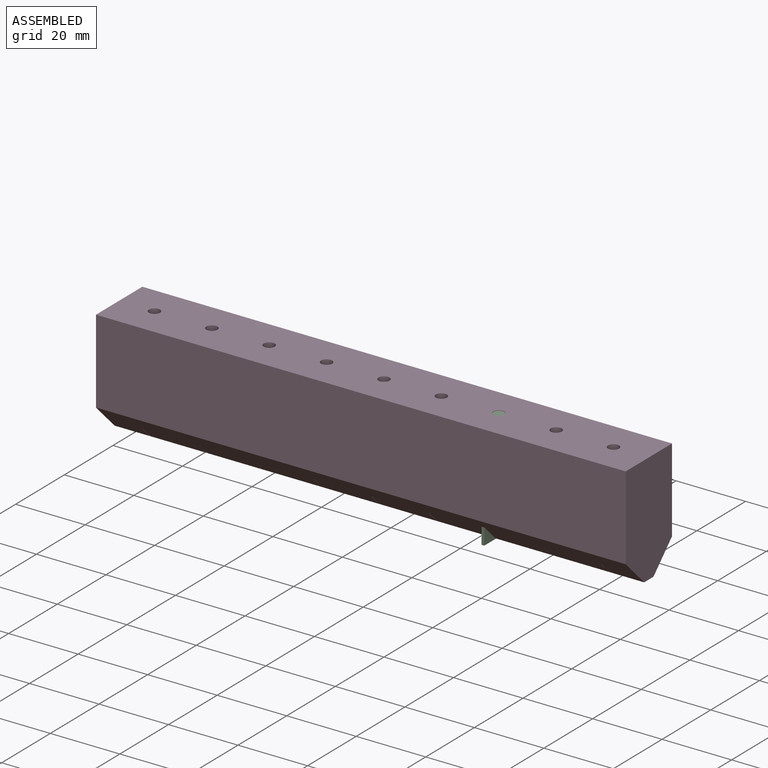
[diagram: assembled view]
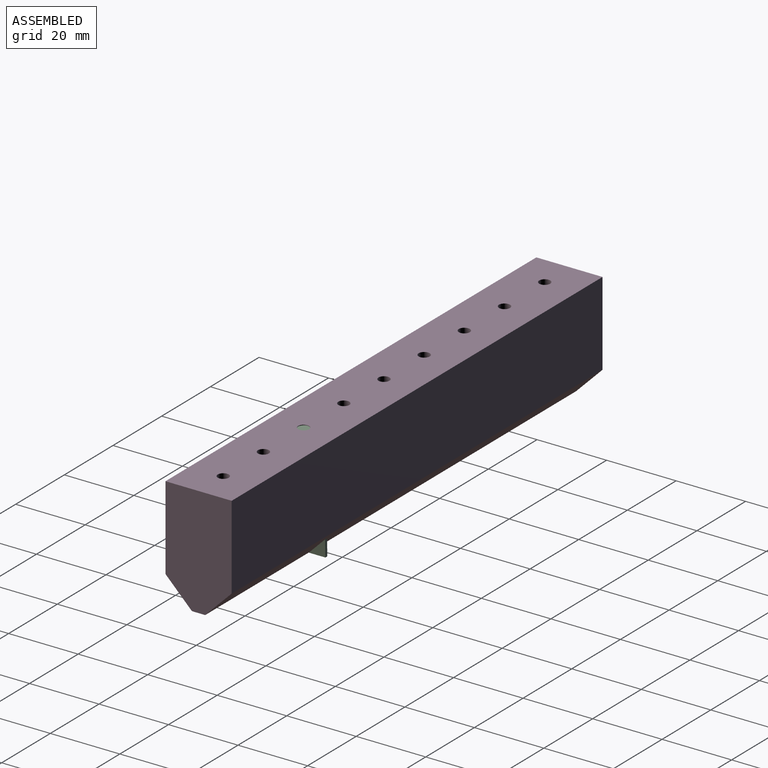
[diagram: assembled view, second angle]
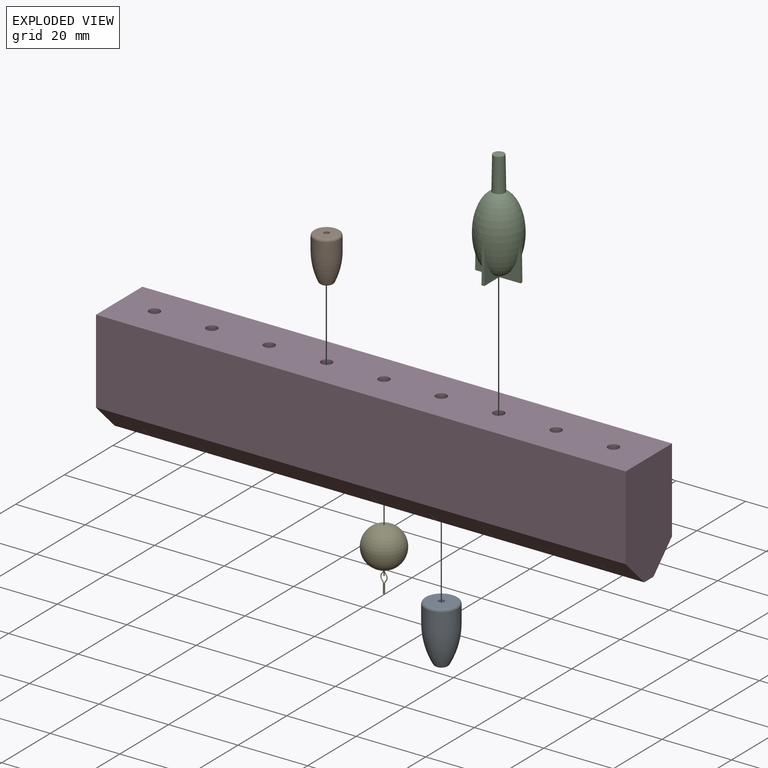
[diagram: exploded view]
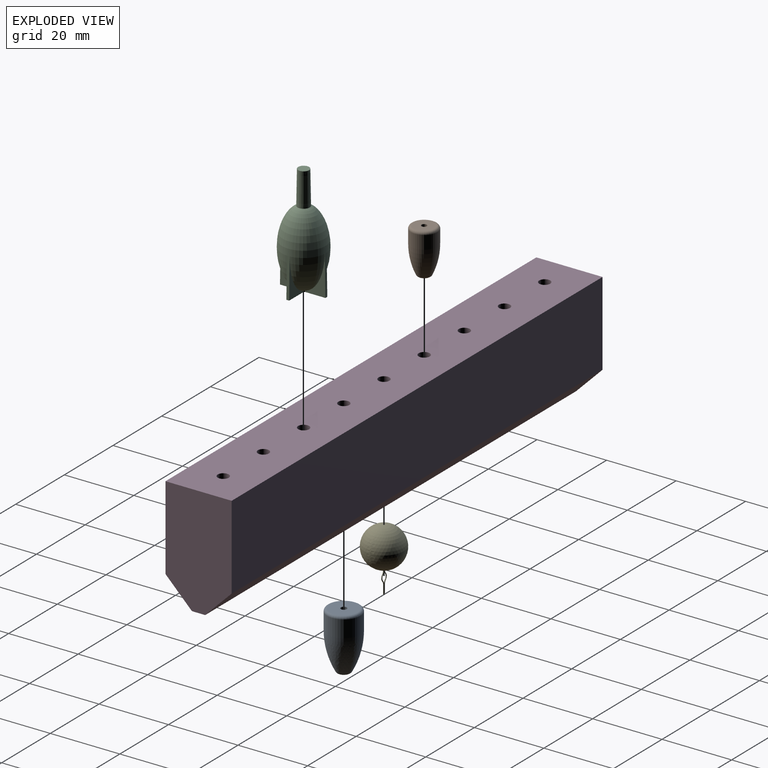
[diagram: exploded view, second angle]
ASSEMBLY  parts=5 mates=4
PART A: 7 faces, bbox 10.3x10.3x16.6 mm
  f0: cylinder r=0.85mm len=16.64mm, axis (0,0,-1), area 88.9mm2, adj f1,f4
  f1: plane 2.67x2.67mm, normal (0,0,-1), area 3.3mm2, adj f0,f5
  f2: revolved ~10.66x9.53mm, area 268.1mm2, adj f3,f5
  f3: cylinder r=4.76mm len=9.53mm, axis (0,0,-1), area 144.4mm2, adj f2,f6
  f4: plane 8x8mm, normal (0,0,1), area 48mm2, adj f0,f6
  f5: torus R=1.33mm, axis (0,0,-1), area 8.7mm2, adj f1,f2
  f6: torus R=4mm, axis (0,0,-1), area 33.7mm2, adj f3,f4
PART B: 7 faces, bbox 8.2x8.2x13.1 mm
  f0: cylinder r=0.76mm len=13.06mm, axis (0,0,-1), area 62.5mm2, adj f1,f4
  f1: plane 2.6x2.6mm, normal (0,0,-1), area 3.5mm2, adj f0,f5
  f2: revolved ~8.05x7.57mm, area 166.2mm2, adj f3,f5
  f3: cylinder r=3.78mm len=7.57mm, axis (0,0,-1), area 90.6mm2, adj f2,f6
  f4: plane 6.05x6.05mm, normal (0,0,1), area 26.9mm2, adj f0,f6
  f5: torus R=1.3mm, axis (0,0,-1), area 9.1mm2, adj f1,f2
  f6: torus R=3.02mm, axis (0,0,-1), area 26.4mm2, adj f3,f4
PART C: 24 faces, bbox 13.1x13.1x31.8 mm
  f0: plane 11.43x5.84mm, normal (0,-1,0), area 18.1mm2, adj f11,f13,f14,f23
  f1: plane 11.43x5.84mm, normal (0,1,0), area 18.1mm2, adj f2,f13,f14,f23
  f2: cylinder r=0.79mm len=0.4mm, axis (0,0,1), area 0.2mm2, adj f1,f3,f13,f14
  f3: plane 11.43x5.84mm, normal (-1,0,0), area 18.1mm2, adj f2,f13,f14,f21
  f4: plane 11.43x5.84mm, normal (1,0,0), area 18.1mm2, adj f5,f13,f14,f21
  f5: cylinder r=0.79mm len=0.4mm, axis (0,0,1), area 0.2mm2, adj f4,f6,f13,f14
  f6: plane 11.43x5.84mm, normal (0,1,0), area 18.1mm2, adj f5,f13,f14,f19
  f7: plane 11.43x5.84mm, normal (0,-1,0), area 18.1mm2, adj f8,f13,f14,f19
  f8: cylinder r=0.79mm len=0.4mm, axis (0,0,1), area 0.2mm2, adj f7,f9,f13,f14
  f9: plane 11.43x5.84mm, normal (1,0,0), area 18.1mm2, adj f8,f13,f14,f17
  f10: plane 11.43x5.84mm, normal (-1,0,0), area 18.1mm2, adj f11,f13,f14,f17
  f11: cylinder r=0.79mm len=0.4mm, axis (0,0,1), area 0.2mm2, adj f0,f10,f13,f14
  f12: plane 3.18x3.18mm, normal (0,0,1), area 7.9mm2, adj f15
  f13: plane 13.06x13.06mm, normal (0,0,-1), area 20.4mm2, adj f0,f1,f2,f3,f4,f5,f6,f7
  f14: revolved ~21.7x12.67mm, area 1095.3mm2, adj f0,f1,f2,f3,f4,f5,f6,f7
  f15: cone r=1.59mm half-angle=1deg, axis (0,0,-1), area 101.3mm2, adj f12,f14
  f16: plane 0.8x0.01mm, normal (0,0,-1), area 0mm2, adj f14,f17
  f17: plane 11.43x0.8mm, normal (0,-1,0.02), area 9.1mm2, adj f9,f10,f13,f16
  f18: plane 0.8x0.01mm, normal (0,0,-1), area 0mm2, adj f14,f19
  f19: plane 11.43x0.8mm, normal (1,0,0.02), area 9.1mm2, adj f6,f7,f13,f18
  f20: plane 0.8x0.01mm, normal (0,0,-1), area 0mm2, adj f14,f21
  f21: plane 11.43x0.8mm, normal (0,1,0.02), area 9.1mm2, adj f3,f4,f13,f20
  f22: plane 0.8x0.01mm, normal (0,0,-1), area 0mm2, adj f14,f23
  f23: plane 11.43x0.8mm, normal (-1,0,0.02), area 9.1mm2, adj f0,f1,f13,f22
PART D: 251 faces, bbox 152.4x19.1x31.8 mm
  f0: plane 10.1x3.81mm, normal (0,0,-1), area 36.5mm2, adj f25,f28,f47,f49,f53,f164,f177,f181
  f1: plane 16.38x3.81mm, normal (0,0,-1), area 58.5mm2, adj f23,f24,f51,f52,f56,f60,f62,f66
  f2: plane 16.38x3.81mm, normal (0,0,-1), area 58.5mm2, adj f21,f22,f64,f65,f69,f73,f75,f79
  f3: plane 16.38x3.81mm, normal (0,0,-1), area 58.5mm2, adj f19,f20,f77,f78,f82,f86,f88,f92
  f4: plane 16.38x3.81mm, normal (0,0,-1), area 58.5mm2, adj f18,f27,f34,f36,f40,f90,f91,f95
  f5: plane 16.38x3.81mm, normal (0,0,-1), area 58.5mm2, adj f17,f26,f38,f39,f43,f99,f101,f105
  f6: plane 16.38x3.81mm, normal (0,0,-1), area 58.5mm2, adj f15,f16,f103,f104,f108,f112,f114,f118
  f7: plane 16.38x3.81mm, normal (0,0,-1), area 58.5mm2, adj f13,f14,f116,f117,f121,f125,f127,f131
  f8: plane 16.38x3.81mm, normal (0,0,-1), area 58.5mm2, adj f10,f12,f129,f130,f134,f138,f140,f144
  f9: cylinder r=0.79mm len=0.72mm, axis (0,0,-1), area 0.4mm2, adj f11,f136,f142,f147
  f10: cylinder r=0.79mm len=0.72mm, axis (0,0,-1), area 0.4mm2, adj f8,f136,f138,f144
  f11: plane 10.1x3.81mm, normal (0,0,-1), area 36.5mm2, adj f9,f30,f142,f143,f147,f149,f243,f247
  f12: cylinder r=0.79mm len=0.72mm, axis (0,0,-1), area 0.4mm2, adj f8,f123,f129,f134
  f13: cylinder r=0.79mm len=0.72mm, axis (0,0,-1), area 0.4mm2, adj f7,f123,f125,f131
  f14: cylinder r=0.79mm len=0.72mm, axis (0,0,-1), area 0.4mm2, adj f7,f110,f116,f121
  f15: cylinder r=0.79mm len=0.72mm, axis (0,0,-1), area 0.4mm2, adj f6,f110,f112,f118
  f16: cylinder r=0.79mm len=0.72mm, axis (0,0,-1), area 0.4mm2, adj f6,f97,f103,f108
  f17: cylinder r=0.79mm len=0.72mm, axis (0,0,-1), area 0.4mm2, adj f5,f97,f99,f105
  f18: cylinder r=0.79mm len=0.72mm, axis (0,0,-1), area 0.4mm2, adj f4,f84,f90,f95
  f19: cylinder r=0.79mm len=0.72mm, axis (0,0,-1), area 0.4mm2, adj f3,f84,f86,f92
  f20: cylinder r=0.79mm len=0.72mm, axis (0,0,-1), area 0.4mm2, adj f3,f71,f77,f82
  f21: cylinder r=0.79mm len=0.72mm, axis (0,0,-1), area 0.4mm2, adj f2,f71,f73,f79
  f22: cylinder r=0.79mm len=0.72mm, axis (0,0,-1), area 0.4mm2, adj f2,f58,f64,f69
  f23: cylinder r=0.79mm len=0.72mm, axis (0,0,-1), area 0.4mm2, adj f1,f58,f60,f66
  f24: cylinder r=0.79mm len=0.72mm, axis (0,0,-1), area 0.4mm2, adj f1,f45,f51,f56
  f25: cylinder r=0.79mm len=0.72mm, axis (0,0,-1), area 0.4mm2, adj f0,f45,f47,f53
  f26: cylinder r=0.79mm len=0.72mm, axis (0,0,-1), area 0.4mm2, adj f5,f32,f38,f43
  f27: cylinder r=0.79mm len=0.72mm, axis (0,0,-1), area 0.4mm2, adj f4,f32,f34,f40
  f28: plane 31.75x19.05mm, normal (1,0,0), area 546.8mm2, adj f0,f29,f31,f167,f249,f250
  f29: plane 152.4x19.05mm, normal (0,0,1), area 2832mm2, adj f28,f30,f31,f33,f46,f59,f72,f85
  f30: plane 31.75x19.05mm, normal (-1,0,0), area 546.8mm2, adj f11,f29,f31,f167,f249,f250
  f31: plane 152.4x24.13mm, normal (0,1,0), area 3677.4mm2, adj f28,f29,f30,f250
  f32: revolved ~21.79x12.7mm, area 1391.5mm2, adj f26,f27,f33,f34,f35,f37,f38,f40
  f33: cylinder r=1.59mm len=9.56mm, axis (0,0,-1), area 95.4mm2, adj f29,f32
  f34: plane 4.76x4.3mm, normal (0,-1,0), area 8.2mm2, adj f4,f27,f32,f35,f36
  f35: plane 0.13x0mm, normal (0,0,-1), area 0mm2, adj f32,f34,f36
  f36: plane 4.76x0.25mm, normal (-1,0,0), area 1.2mm2, adj f4,f34,f35,f168,f169
  f37: plane 0.13x0mm, normal (0,0,-1), area 0mm2, adj f32,f38,f39
  f38: plane 4.76x4.3mm, normal (0,-1,0), area 8.2mm2, adj f5,f26,f32,f37,f39
  f39: plane 4.76x0.25mm, normal (1,0,0), area 1.2mm2, adj f5,f37,f38,f170,f171
  f40: plane 4.76x4.29mm, normal (-1,0,0), area 3.1mm2, adj f4,f27,f32,f42,f44,f250
  f41: plane 0.06x0mm, normal (0,0,-1), area 0mm2, adj f32,f43,f44
  f42: plane 0.06x0mm, normal (0,0,-1), area 0mm2, adj f32,f40,f44
  f43: plane 4.76x4.29mm, normal (1,0,0), area 3.1mm2, adj f5,f26,f32,f41,f44,f250
  f44: plane 1.59x0.13mm, normal (0,-1,0), area 0.2mm2, adj f40,f41,f42,f43,f250
  f45: revolved ~21.79x12.7mm, area 1391.5mm2, adj f24,f25,f46,f47,f48,f50,f51,f53
  f46: cylinder r=1.59mm len=9.56mm, axis (0,0,-1), area 95.4mm2, adj f29,f45
  f47: plane 4.76x4.3mm, normal (0,-1,0), area 8.2mm2, adj f0,f25,f45,f48,f49
  f48: plane 0.13x0mm, normal (0,0,-1), area 0mm2, adj f45,f47,f49
  f49: plane 4.76x0.25mm, normal (-1,0,0), area 1.2mm2, adj f0,f47,f48,f177,f178
  f50: plane 0.13x0mm, normal (0,0,-1), area 0mm2, adj f45,f51,f52
  f51: plane 4.76x4.3mm, normal (0,-1,0), area 8.2mm2, adj f1,f24,f45,f50,f52
  f52: plane 4.76x0.25mm, normal (1,0,0), area 1.2mm2, adj f1,f50,f51,f179,f180
  f53: plane 4.76x4.29mm, normal (-1,0,0), area 3.1mm2, adj f0,f25,f45,f55,f57,f250
  f54: plane 0.06x0mm, normal (0,0,-1), area 0mm2, adj f45,f56,f57
  f55: plane 0.06x0mm, normal (0,0,-1), area 0mm2, adj f45,f53,f57
  f56: plane 4.76x4.29mm, normal (1,0,0), area 3.1mm2, adj f1,f24,f45,f54,f57,f250
  f57: plane 1.59x0.13mm, normal (0,-1,0), area 0.2mm2, adj f53,f54,f55,f56,f250
  f58: revolved ~21.79x12.7mm, area 1391.5mm2, adj f22,f23,f59,f60,f61,f63,f64,f66
  f59: cylinder r=1.59mm len=9.56mm, axis (0,0,-1), area 95.4mm2, adj f29,f58
  f60: plane 4.76x4.3mm, normal (0,-1,0), area 8.2mm2, adj f1,f23,f58,f61,f62
  f61: plane 0.13x0mm, normal (0,0,-1), area 0mm2, adj f58,f60,f62
  f62: plane 4.76x0.25mm, normal (-1,0,0), area 1.2mm2, adj f1,f60,f61,f186,f187
  f63: plane 0.13x0mm, normal (0,0,-1), area 0mm2, adj f58,f64,f65
  f64: plane 4.76x4.3mm, normal (0,-1,0), area 8.2mm2, adj f2,f22,f58,f63,f65
  f65: plane 4.76x0.25mm, normal (1,0,0), area 1.2mm2, adj f2,f63,f64,f188,f189
  f66: plane 4.76x4.29mm, normal (-1,0,0), area 3.1mm2, adj f1,f23,f58,f68,f70,f250
  f67: plane 0.06x0mm, normal (0,0,-1), area 0mm2, adj f58,f69,f70
  f68: plane 0.06x0mm, normal (0,0,-1), area 0mm2, adj f58,f66,f70
  f69: plane 4.76x4.29mm, normal (1,0,0), area 3.1mm2, adj f2,f22,f58,f67,f70,f250
  f70: plane 1.59x0.13mm, normal (0,-1,0), area 0.2mm2, adj f66,f67,f68,f69,f250
  f71: revolved ~21.79x12.7mm, area 1391.5mm2, adj f20,f21,f72,f73,f74,f76,f77,f79
  f72: cylinder r=1.59mm len=9.56mm, axis (0,0,-1), area 95.4mm2, adj f29,f71
  f73: plane 4.76x4.3mm, normal (0,-1,0), area 8.2mm2, adj f2,f21,f71,f74,f75
  f74: plane 0.13x0mm, normal (0,0,-1), area 0mm2, adj f71,f73,f75
  f75: plane 4.76x0.25mm, normal (-1,0,0), area 1.2mm2, adj f2,f73,f74,f195,f196
  f76: plane 0.13x0mm, normal (0,0,-1), area 0mm2, adj f71,f77,f78
  f77: plane 4.76x4.3mm, normal (0,-1,0), area 8.2mm2, adj f3,f20,f71,f76,f78
  f78: plane 4.76x0.25mm, normal (1,0,0), area 1.2mm2, adj f3,f76,f77,f197,f198
  f79: plane 4.76x4.29mm, normal (-1,0,0), area 3.1mm2, adj f2,f21,f71,f81,f83,f250
  f80: plane 0.06x0mm, normal (0,0,-1), area 0mm2, adj f71,f82,f83
  f81: plane 0.06x0mm, normal (0,0,-1), area 0mm2, adj f71,f79,f83
  f82: plane 4.76x4.29mm, normal (1,0,0), area 3.1mm2, adj f3,f20,f71,f80,f83,f250
  f83: plane 1.59x0.13mm, normal (0,-1,0), area 0.2mm2, adj f79,f80,f81,f82,f250
  f84: revolved ~21.79x12.7mm, area 1391.5mm2, adj f18,f19,f85,f86,f87,f89,f90,f92
  f85: cylinder r=1.59mm len=9.56mm, axis (0,0,-1), area 95.4mm2, adj f29,f84
  f86: plane 4.76x4.3mm, normal (0,-1,0), area 8.2mm2, adj f3,f19,f84,f87,f88
  f87: plane 0.13x0mm, normal (0,0,-1), area 0mm2, adj f84,f86,f88
  f88: plane 4.76x0.25mm, normal (-1,0,0), area 1.2mm2, adj f3,f86,f87,f204,f205
  f89: plane 0.13x0mm, normal (0,0,-1), area 0mm2, adj f84,f90,f91
  f90: plane 4.76x4.3mm, normal (0,-1,0), area 8.2mm2, adj f4,f18,f84,f89,f91
  f91: plane 4.76x0.25mm, normal (1,0,0), area 1.2mm2, adj f4,f89,f90,f206,f207
  f92: plane 4.76x4.29mm, normal (-1,0,0), area 3.1mm2, adj f3,f19,f84,f94,f96,f250
  f93: plane 0.06x0mm, normal (0,0,-1), area 0mm2, adj f84,f95,f96
  f94: plane 0.06x0mm, normal (0,0,-1), area 0mm2, adj f84,f92,f96
  f95: plane 4.76x4.29mm, normal (1,0,0), area 3.1mm2, adj f4,f18,f84,f93,f96,f250
  f96: plane 1.59x0.13mm, normal (0,-1,0), area 0.2mm2, adj f92,f93,f94,f95,f250
  f97: revolved ~21.79x12.7mm, area 1391.5mm2, adj f16,f17,f98,f99,f100,f102,f103,f105
  f98: cylinder r=1.59mm len=9.56mm, axis (0,0,-1), area 95.4mm2, adj f29,f97
  f99: plane 4.76x4.3mm, normal (0,-1,0), area 8.2mm2, adj f5,f17,f97,f100,f101
  f100: plane 0.13x0mm, normal (0,0,-1), area 0mm2, adj f97,f99,f101
  f101: plane 4.76x0.25mm, normal (-1,0,0), area 1.2mm2, adj f5,f99,f100,f213,f214
  f102: plane 0.13x0mm, normal (0,0,-1), area 0mm2, adj f97,f103,f104
  f103: plane 4.76x4.3mm, normal (0,-1,0), area 8.2mm2, adj f6,f16,f97,f102,f104
  f104: plane 4.76x0.25mm, normal (1,0,0), area 1.2mm2, adj f6,f102,f103,f215,f216
  f105: plane 4.76x4.29mm, normal (-1,0,0), area 3.1mm2, adj f5,f17,f97,f107,f109,f250
  f106: plane 0.06x0mm, normal (0,0,-1), area 0mm2, adj f97,f108,f109
  f107: plane 0.06x0mm, normal (0,0,-1), area 0mm2, adj f97,f105,f109
  f108: plane 4.76x4.29mm, normal (1,0,0), area 3.1mm2, adj f6,f16,f97,f106,f109,f250
  f109: plane 1.59x0.13mm, normal (0,-1,0), area 0.2mm2, adj f105,f106,f107,f108,f250
  f110: revolved ~21.79x12.7mm, area 1391.5mm2, adj f14,f15,f111,f112,f113,f115,f116,f118
  f111: cylinder r=1.59mm len=9.56mm, axis (0,0,-1), area 95.4mm2, adj f29,f110
  f112: plane 4.76x4.3mm, normal (0,-1,0), area 8.2mm2, adj f6,f15,f110,f113,f114
  f113: plane 0.13x0mm, normal (0,0,-1), area 0mm2, adj f110,f112,f114
  f114: plane 4.76x0.25mm, normal (-1,0,0), area 1.2mm2, adj f6,f112,f113,f222,f223
  f115: plane 0.13x0mm, normal (0,0,-1), area 0mm2, adj f110,f116,f117
  f116: plane 4.76x4.3mm, normal (0,-1,0), area 8.2mm2, adj f7,f14,f110,f115,f117
  f117: plane 4.76x0.25mm, normal (1,0,0), area 1.2mm2, adj f7,f115,f116,f224,f225
  f118: plane 4.76x4.29mm, normal (-1,0,0), area 3.1mm2, adj f6,f15,f110,f120,f122,f250
  f119: plane 0.06x0mm, normal (0,0,-1), area 0mm2, adj f110,f121,f122
  f120: plane 0.06x0mm, normal (0,0,-1), area 0mm2, adj f110,f118,f122
  f121: plane 4.76x4.29mm, normal (1,0,0), area 3.1mm2, adj f7,f14,f110,f119,f122,f250
  f122: plane 1.59x0.13mm, normal (0,-1,0), area 0.2mm2, adj f118,f119,f120,f121,f250
  f123: revolved ~21.79x12.7mm, area 1391.5mm2, adj f12,f13,f124,f125,f126,f128,f129,f131
  f124: cylinder r=1.59mm len=9.56mm, axis (0,0,-1), area 95.4mm2, adj f29,f123
  f125: plane 4.76x4.3mm, normal (0,-1,0), area 8.2mm2, adj f7,f13,f123,f126,f127
  f126: plane 0.13x0mm, normal (0,0,-1), area 0mm2, adj f123,f125,f127
  f127: plane 4.76x0.25mm, normal (-1,0,0), area 1.2mm2, adj f7,f125,f126,f231,f232
  f128: plane 0.13x0mm, normal (0,0,-1), area 0mm2, adj f123,f129,f130
  f129: plane 4.76x4.3mm, normal (0,-1,0), area 8.2mm2, adj f8,f12,f123,f128,f130
  f130: plane 4.76x0.25mm, normal (1,0,0), area 1.2mm2, adj f8,f128,f129,f233,f234
  f131: plane 4.76x4.29mm, normal (-1,0,0), area 3.1mm2, adj f7,f13,f123,f133,f135,f250
  f132: plane 0.06x0mm, normal (0,0,-1), area 0mm2, adj f123,f134,f135
  f133: plane 0.06x0mm, normal (0,0,-1), area 0mm2, adj f123,f131,f135
  f134: plane 4.76x4.29mm, normal (1,0,0), area 3.1mm2, adj f8,f12,f123,f132,f135,f250
  f135: plane 1.59x0.13mm, normal (0,-1,0), area 0.2mm2, adj f131,f132,f133,f134,f250
  f136: revolved ~21.79x12.7mm, area 1391.5mm2, adj f9,f10,f137,f138,f139,f141,f142,f144
  f137: cylinder r=1.59mm len=9.56mm, axis (0,0,-1), area 95.4mm2, adj f29,f136
  f138: plane 4.76x4.3mm, normal (0,-1,0), area 8.2mm2, adj f8,f10,f136,f139,f140
  f139: plane 0.13x0mm, normal (0,0,-1), area 0mm2, adj f136,f138,f140
  f140: plane 4.76x0.25mm, normal (-1,0,0), area 1.2mm2, adj f8,f138,f139,f240,f241
  f141: plane 0.13x0mm, normal (0,0,-1), area 0mm2, adj f136,f142,f143
  f142: plane 4.76x4.3mm, normal (0,-1,0), area 8.2mm2, adj f9,f11,f136,f141,f143
  f143: plane 4.76x0.25mm, normal (1,0,0), area 1.2mm2, adj f11,f141,f142,f242,f243
  f144: plane 4.76x4.29mm, normal (-1,0,0), area 3.1mm2, adj f8,f10,f136,f146,f148,f250
  f145: plane 0.06x0mm, normal (0,0,-1), area 0mm2, adj f136,f147,f148
  f146: plane 0.06x0mm, normal (0,0,-1), area 0mm2, adj f136,f144,f148
  f147: plane 4.76x4.29mm, normal (1,0,0), area 3.1mm2, adj f9,f11,f136,f145,f148,f250
  f148: plane 1.59x0.13mm, normal (0,-1,0), area 0.2mm2, adj f144,f145,f146,f147,f250
  f149: cylinder r=0.79mm len=0.72mm, axis (0,0,-1), area 0.4mm2, adj f11,f136,f243,f247
  f150: cylinder r=0.79mm len=0.72mm, axis (0,0,-1), area 0.4mm2, adj f8,f136,f240,f244
  f151: cylinder r=0.79mm len=0.72mm, axis (0,0,-1), area 0.4mm2, adj f8,f123,f234,f238
  f152: cylinder r=0.79mm len=0.72mm, axis (0,0,-1), area 0.4mm2, adj f7,f123,f231,f235
  f153: cylinder r=0.79mm len=0.72mm, axis (0,0,-1), area 0.4mm2, adj f7,f110,f225,f229
  f154: cylinder r=0.79mm len=0.72mm, axis (0,0,-1), area 0.4mm2, adj f6,f110,f222,f226
  f155: cylinder r=0.79mm len=0.72mm, axis (0,0,-1), area 0.4mm2, adj f6,f97,f216,f220
  f156: cylinder r=0.79mm len=0.72mm, axis (0,0,-1), area 0.4mm2, adj f5,f97,f213,f217
  f157: cylinder r=0.79mm len=0.72mm, axis (0,0,-1), area 0.4mm2, adj f4,f84,f207,f211
  f158: cylinder r=0.79mm len=0.72mm, axis (0,0,-1), area 0.4mm2, adj f3,f84,f204,f208
  f159: cylinder r=0.79mm len=0.72mm, axis (0,0,-1), area 0.4mm2, adj f3,f71,f198,f202
  f160: cylinder r=0.79mm len=0.72mm, axis (0,0,-1), area 0.4mm2, adj f2,f71,f195,f199
  f161: cylinder r=0.79mm len=0.72mm, axis (0,0,-1), area 0.4mm2, adj f2,f58,f189,f193
  f162: cylinder r=0.79mm len=0.72mm, axis (0,0,-1), area 0.4mm2, adj f1,f58,f186,f190
  f163: cylinder r=0.79mm len=0.72mm, axis (0,0,-1), area 0.4mm2, adj f1,f45,f180,f184
  f164: cylinder r=0.79mm len=0.72mm, axis (0,0,-1), area 0.4mm2, adj f0,f45,f177,f181
  f165: cylinder r=0.79mm len=0.72mm, axis (0,0,-1), area 0.4mm2, adj f5,f32,f171,f175
  f166: cylinder r=0.79mm len=0.72mm, axis (0,0,-1), area 0.4mm2, adj f4,f32,f168,f172
  f167: plane 152.4x24.13mm, normal (0,-1,0), area 3677.4mm2, adj f28,f29,f30,f249
  f168: plane 4.76x4.3mm, normal (0,1,0), area 8.2mm2, adj f4,f32,f36,f166,f169
  f169: plane 0.13x0mm, normal (0,0,-1), area 0mm2, adj f32,f36,f168
  f170: plane 0.13x0mm, normal (0,0,-1), area 0mm2, adj f32,f39,f171
  f171: plane 4.76x4.3mm, normal (0,1,0), area 8.2mm2, adj f5,f32,f39,f165,f170
  f172: plane 4.76x4.29mm, normal (-1,0,0), area 3.1mm2, adj f4,f32,f166,f174,f176,f249
  f173: plane 0.06x0mm, normal (0,0,-1), area 0mm2, adj f32,f175,f176
  f174: plane 0.06x0mm, normal (0,0,-1), area 0mm2, adj f32,f172,f176
  f175: plane 4.76x4.29mm, normal (1,0,0), area 3.1mm2, adj f5,f32,f165,f173,f176,f249
  f176: plane 1.59x0.13mm, normal (0,1,0), area 0.2mm2, adj f172,f173,f174,f175,f249
  f177: plane 4.76x4.3mm, normal (0,1,0), area 8.2mm2, adj f0,f45,f49,f164,f178
  f178: plane 0.13x0mm, normal (0,0,-1), area 0mm2, adj f45,f49,f177
  f179: plane 0.13x0mm, normal (0,0,-1), area 0mm2, adj f45,f52,f180
  f180: plane 4.76x4.3mm, normal (0,1,0), area 8.2mm2, adj f1,f45,f52,f163,f179
  f181: plane 4.76x4.29mm, normal (-1,0,0), area 3.1mm2, adj f0,f45,f164,f183,f185,f249
  f182: plane 0.06x0mm, normal (0,0,-1), area 0mm2, adj f45,f184,f185
  f183: plane 0.06x0mm, normal (0,0,-1), area 0mm2, adj f45,f181,f185
  f184: plane 4.76x4.29mm, normal (1,0,0), area 3.1mm2, adj f1,f45,f163,f182,f185,f249
  f185: plane 1.59x0.13mm, normal (0,1,0), area 0.2mm2, adj f181,f182,f183,f184,f249
  f186: plane 4.76x4.3mm, normal (0,1,0), area 8.2mm2, adj f1,f58,f62,f162,f187
  f187: plane 0.13x0mm, normal (0,0,-1), area 0mm2, adj f58,f62,f186
  f188: plane 0.13x0mm, normal (0,0,-1), area 0mm2, adj f58,f65,f189
  f189: plane 4.76x4.3mm, normal (0,1,0), area 8.2mm2, adj f2,f58,f65,f161,f188
  f190: plane 4.76x4.29mm, normal (-1,0,0), area 3.1mm2, adj f1,f58,f162,f192,f194,f249
  f191: plane 0.06x0mm, normal (0,0,-1), area 0mm2, adj f58,f193,f194
  f192: plane 0.06x0mm, normal (0,0,-1), area 0mm2, adj f58,f190,f194
  f193: plane 4.76x4.29mm, normal (1,0,0), area 3.1mm2, adj f2,f58,f161,f191,f194,f249
  f194: plane 1.59x0.13mm, normal (0,1,0), area 0.2mm2, adj f190,f191,f192,f193,f249
  f195: plane 4.76x4.3mm, normal (0,1,0), area 8.2mm2, adj f2,f71,f75,f160,f196
  f196: plane 0.13x0mm, normal (0,0,-1), area 0mm2, adj f71,f75,f195
  f197: plane 0.13x0mm, normal (0,0,-1), area 0mm2, adj f71,f78,f198
  f198: plane 4.76x4.3mm, normal (0,1,0), area 8.2mm2, adj f3,f71,f78,f159,f197
  f199: plane 4.76x4.29mm, normal (-1,0,0), area 3.1mm2, adj f2,f71,f160,f201,f203,f249
  f200: plane 0.06x0mm, normal (0,0,-1), area 0mm2, adj f71,f202,f203
  f201: plane 0.06x0mm, normal (0,0,-1), area 0mm2, adj f71,f199,f203
  f202: plane 4.76x4.29mm, normal (1,0,0), area 3.1mm2, adj f3,f71,f159,f200,f203,f249
  f203: plane 1.59x0.13mm, normal (0,1,0), area 0.2mm2, adj f199,f200,f201,f202,f249
  f204: plane 4.76x4.3mm, normal (0,1,0), area 8.2mm2, adj f3,f84,f88,f158,f205
  f205: plane 0.13x0mm, normal (0,0,-1), area 0mm2, adj f84,f88,f204
  f206: plane 0.13x0mm, normal (0,0,-1), area 0mm2, adj f84,f91,f207
  f207: plane 4.76x4.3mm, normal (0,1,0), area 8.2mm2, adj f4,f84,f91,f157,f206
  f208: plane 4.76x4.29mm, normal (-1,0,0), area 3.1mm2, adj f3,f84,f158,f210,f212,f249
  f209: plane 0.06x0mm, normal (0,0,-1), area 0mm2, adj f84,f211,f212
  f210: plane 0.06x0mm, normal (0,0,-1), area 0mm2, adj f84,f208,f212
  f211: plane 4.76x4.29mm, normal (1,0,0), area 3.1mm2, adj f4,f84,f157,f209,f212,f249
  f212: plane 1.59x0.13mm, normal (0,1,0), area 0.2mm2, adj f208,f209,f210,f211,f249
  f213: plane 4.76x4.3mm, normal (0,1,0), area 8.2mm2, adj f5,f97,f101,f156,f214
  f214: plane 0.13x0mm, normal (0,0,-1), area 0mm2, adj f97,f101,f213
  f215: plane 0.13x0mm, normal (0,0,-1), area 0mm2, adj f97,f104,f216
  f216: plane 4.76x4.3mm, normal (0,1,0), area 8.2mm2, adj f6,f97,f104,f155,f215
  f217: plane 4.76x4.29mm, normal (-1,0,0), area 3.1mm2, adj f5,f97,f156,f219,f221,f249
  f218: plane 0.06x0mm, normal (0,0,-1), area 0mm2, adj f97,f220,f221
  f219: plane 0.06x0mm, normal (0,0,-1), area 0mm2, adj f97,f217,f221
  f220: plane 4.76x4.29mm, normal (1,0,0), area 3.1mm2, adj f6,f97,f155,f218,f221,f249
  f221: plane 1.59x0.13mm, normal (0,1,0), area 0.2mm2, adj f217,f218,f219,f220,f249
  f222: plane 4.76x4.3mm, normal (0,1,0), area 8.2mm2, adj f6,f110,f114,f154,f223
  f223: plane 0.13x0mm, normal (0,0,-1), area 0mm2, adj f110,f114,f222
  f224: plane 0.13x0mm, normal (0,0,-1), area 0mm2, adj f110,f117,f225
  f225: plane 4.76x4.3mm, normal (0,1,0), area 8.2mm2, adj f7,f110,f117,f153,f224
  f226: plane 4.76x4.29mm, normal (-1,0,0), area 3.1mm2, adj f6,f110,f154,f228,f230,f249
  f227: plane 0.06x0mm, normal (0,0,-1), area 0mm2, adj f110,f229,f230
  f228: plane 0.06x0mm, normal (0,0,-1), area 0mm2, adj f110,f226,f230
  f229: plane 4.76x4.29mm, normal (1,0,0), area 3.1mm2, adj f7,f110,f153,f227,f230,f249
  f230: plane 1.59x0.13mm, normal (0,1,0), area 0.2mm2, adj f226,f227,f228,f229,f249
  f231: plane 4.76x4.3mm, normal (0,1,0), area 8.2mm2, adj f7,f123,f127,f152,f232
  f232: plane 0.13x0mm, normal (0,0,-1), area 0mm2, adj f123,f127,f231
  f233: plane 0.13x0mm, normal (0,0,-1), area 0mm2, adj f123,f130,f234
  f234: plane 4.76x4.3mm, normal (0,1,0), area 8.2mm2, adj f8,f123,f130,f151,f233
  f235: plane 4.76x4.29mm, normal (-1,0,0), area 3.1mm2, adj f7,f123,f152,f237,f239,f249
  f236: plane 0.06x0mm, normal (0,0,-1), area 0mm2, adj f123,f238,f239
  f237: plane 0.06x0mm, normal (0,0,-1), area 0mm2, adj f123,f235,f239
  f238: plane 4.76x4.29mm, normal (1,0,0), area 3.1mm2, adj f8,f123,f151,f236,f239,f249
  f239: plane 1.59x0.13mm, normal (0,1,0), area 0.2mm2, adj f235,f236,f237,f238,f249
  f240: plane 4.76x4.3mm, normal (0,1,0), area 8.2mm2, adj f8,f136,f140,f150,f241
  f241: plane 0.13x0mm, normal (0,0,-1), area 0mm2, adj f136,f140,f240
  f242: plane 0.13x0mm, normal (0,0,-1), area 0mm2, adj f136,f143,f243
  f243: plane 4.76x4.3mm, normal (0,1,0), area 8.2mm2, adj f11,f136,f143,f149,f242
  f244: plane 4.76x4.29mm, normal (-1,0,0), area 3.1mm2, adj f8,f136,f150,f246,f248,f249
  f245: plane 0.06x0mm, normal (0,0,-1), area 0mm2, adj f136,f247,f248
  f246: plane 0.06x0mm, normal (0,0,-1), area 0mm2, adj f136,f244,f248
  f247: plane 4.76x4.29mm, normal (1,0,0), area 3.1mm2, adj f11,f136,f149,f245,f248,f249
  f248: plane 1.59x0.13mm, normal (0,1,0), area 0.2mm2, adj f244,f245,f246,f247,f249
  f249: plane 152.4x7.62mm, normal (0,-0.71,-0.71), area 1637.2mm2, adj f0,f1,f2,f3,f4,f5,f6,f7
  f250: plane 152.4x7.62mm, normal (0,0.71,-0.71), area 1637.2mm2, adj f0,f1,f2,f3,f4,f5,f6,f7
PART E: 21 faces, bbox 11.4x11.4x18.2 mm
  f0: plane 1.02x1.02mm, normal (0,0,-1), area 0.7mm2, adj f3,f12,f20
  f1: cylinder r=0.64mm len=1.27mm, axis (0,0,1), area 0.6mm2, adj f2,f20
  f2: sphere r=5.71mm, area 409.2mm2, adj f1
  f3: cylinder r=0.13mm len=0.25mm, axis (0,0,-1), area 0.1mm2, adj f0,f4
  f4: torus R=1.27mm, axis (0,1,0), area 0.7mm2, adj f3,f5
  f5: cylinder r=0.13mm len=0.38mm, axis (-0.63,0,-0.78), area 0.2mm2, adj f4,f6
  f6: torus R=1.27mm, axis (0,-1,0), area 1.4mm2, adj f5,f7
  f7: cylinder r=0.13mm len=0.28mm, axis (0.67,0,-0.75), area 0.1mm2, adj f6,f8
  f8: torus R=1.27mm, axis (0,1,0), area 0.7mm2, adj f7,f9
  f9: cylinder r=0.13mm len=2.45mm, axis (0,0,-1), area 2mm2, adj f8,f10
  f10: torus R=0.13mm, axis (0,-1,0), area 0.2mm2, adj f9,f11
  f11: cylinder r=0.13mm len=0.25mm, axis (1,0,0), area 0mm2, adj f10,f19
  f12: cylinder r=0.13mm len=0.25mm, axis (0,0,-1), area 0.1mm2, adj f0,f13
  f13: torus R=1.27mm, axis (0,1,0), area 0.7mm2, adj f12,f14
  f14: cylinder r=0.13mm len=0.38mm, axis (0.63,0,-0.78), area 0.2mm2, adj f13,f15
  f15: torus R=1.27mm, axis (0,-1,0), area 1.4mm2, adj f14,f16
  f16: cylinder r=0.13mm len=0.28mm, axis (-0.67,0,-0.75), area 0.1mm2, adj f15,f17
  f17: torus R=1.27mm, axis (0,1,0), area 0.7mm2, adj f16,f18
  f18: cylinder r=0.13mm len=2.45mm, axis (0,0,-1), area 2mm2, adj f17,f19
  f19: torus R=0.13mm, axis (0,-1,0), area 0.2mm2, adj f11,f18
  f20: cone r=0.64mm half-angle=45deg, axis (0,0,1), area 0.6mm2, adj f0,f1
PLACE A t=(16.51,0,-30.72)mm
PLACE B t=(-16.51,0,-28.11)mm
PLACE C t=(33.02,0,-20.46)mm
PLACE D t=(0,0,-15.88)mm
PLACE E t=(0,0,-25.76)mm
MATE slider C.f2 <-> D.f20  axis (0,0,-1) through (33.02,0,-31.89)mm
MATE slider B.f0 <-> D.f16  axis (0,0,1) through (-16.51,0,-15.06)mm
MATE slider D.f26 <-> E.f1  axis (0,0,-1) through (0,0,-4.78)mm
MATE slider A.f0 <-> D.f18  axis (0,0,-1) through (16.51,0,-30.72)mm
